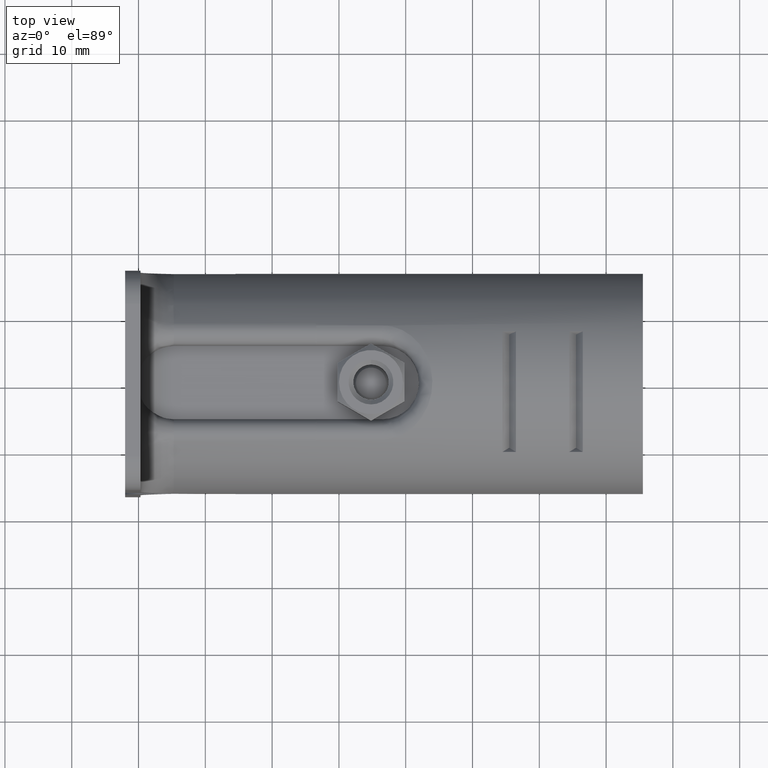
[diagram: clean part render]
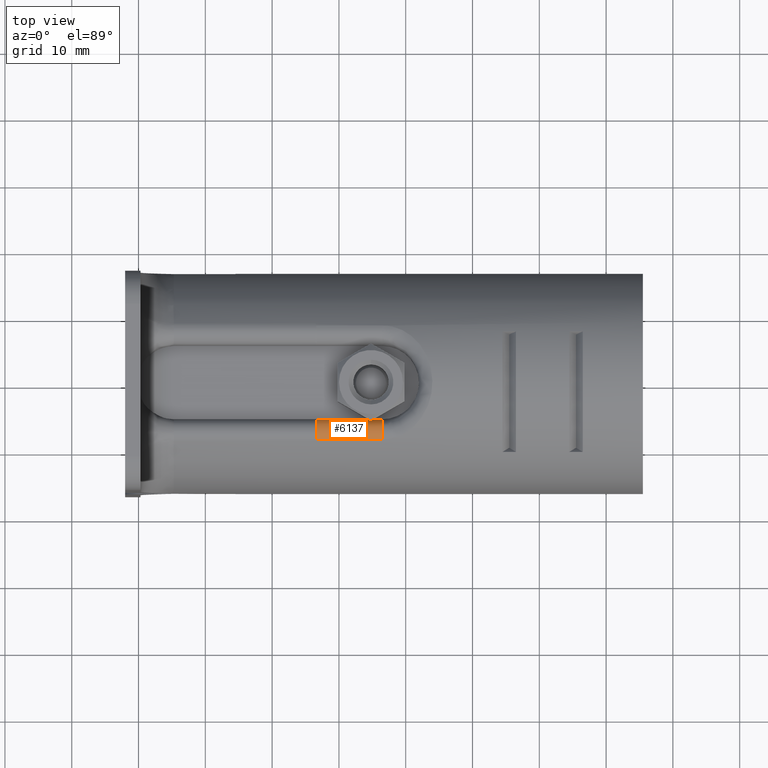
[diagram: same view with one face highlighted and labeled with its STEP entity id]
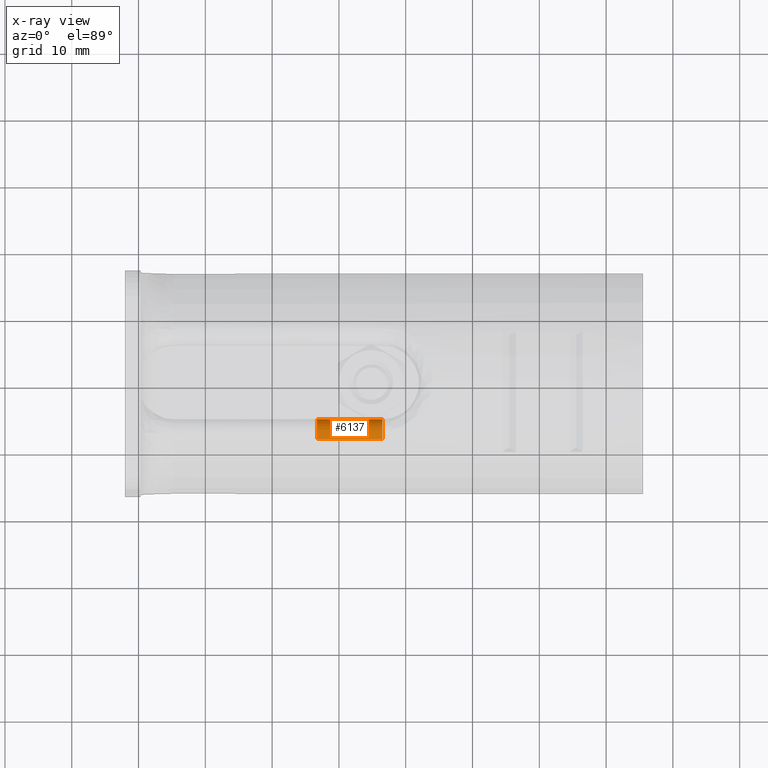
[diagram: x-ray of the same camera — body ghosted, the highlighted face saturated]
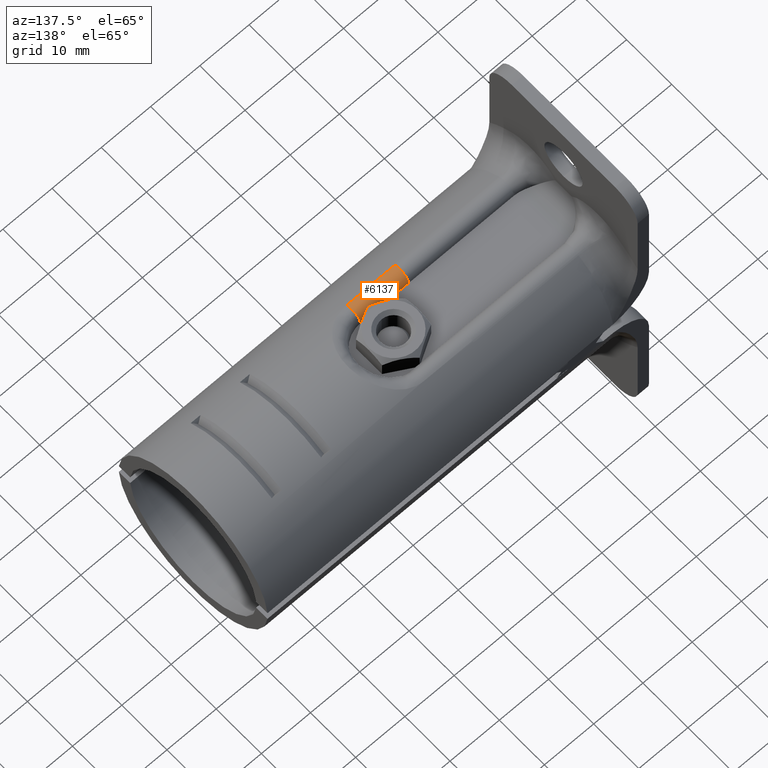
[diagram: same view with one face highlighted and labeled with its STEP entity id]
A machine part, top view. The second image highlights one B-rep face of the part: STEP entity #6137.
The next image is the same camera in x-ray: the body ghosted, the highlighted face saturated — about 0% of this face is hidden behind the body in this view.
A second angle (auxiliary view) of the same face is appended — the face is thin or edge-on in the first view.
In plain terms, the highlighted face is a freeform B-spline surface patch.
Its self-contained STEP definition (entity closure, byte-faithful):
#489 = VERTEX_POINT ( 'NONE', #19041 ) ;
#1080 = CARTESIAN_POINT ( 'NONE',  ( 16.69046530585615784, -5.858668590180206692, 13.56917137314968791 ) ) ;
#1153 = VERTEX_POINT ( 'NONE', #13355 ) ;
#1292 = CARTESIAN_POINT ( 'NONE',  ( 16.69041827631248154, -6.238309429125689753, 13.97479582052905656 ) ) ;
#1586 = CARTESIAN_POINT ( 'NONE',  ( 23.23093102237001872, -8.654965075291991994, 14.04227307775001776 ) ) ;
#1744 = CARTESIAN_POINT ( 'NONE',  ( 23.23017313369238224, -5.499999999537265261, 12.49999998963397196 ) ) ;
#1901 = CARTESIAN_POINT ( 'NONE',  ( 16.49421685236998414, -8.654965075291991994, 14.04227307775001776 ) ) ;
#2398 = CIRCLE ( 'NONE', #6233, 2.000000000000000444 ) ;
#2468 = CARTESIAN_POINT ( 'NONE',  ( 16.69051064318999877, -8.532224505211997823, 14.12267162089000117 ) ) ;
#2716 = CARTESIAN_POINT ( 'NONE',  ( 16.69037683935441407, -7.271406484646953494, 14.40622499079943708 ) ) ;
#3143 = CARTESIAN_POINT ( 'NONE',  ( 26.63158934706000380, -5.444363472037998974, 14.24398270833999725 ) ) ;
#3212 = ORIENTED_EDGE ( 'NONE', *, *, #12656, .F. ) ;
#3247 = CARTESIAN_POINT ( 'NONE',  ( 16.49421685236999124, -7.112071413403000086, 15.13645906077998760 ) ) ;
#3908 = CARTESIAN_POINT ( 'NONE',  ( 19.96034042863333369, -8.532237117428309148, 14.12270971775805961 ) ) ;
#4138 = CARTESIAN_POINT ( 'NONE',  ( 16.69040860540292925, -8.410235381146142331, 14.19622060583723844 ) ) ;
#4255 =( BOUNDED_CURVE ( )  B_SPLINE_CURVE ( 3, ( #11882, #1744, #18566, #13291 ),
 .UNSPECIFIED., .F., .T. ) 
 B_SPLINE_CURVE_WITH_KNOTS ( ( 4, 4 ),
 ( 0.000000000000000000, 1.000000000000000000 ),
 .UNSPECIFIED. ) 
 CURVE ( )  GEOMETRIC_REPRESENTATION_ITEM ( )  RATIONAL_B_SPLINE_CURVE ( ( 1.323926781012948917, 1.323926781012948917, 1.323926781012948917, 1.323926781012948917 ) ) 
 REPRESENTATION_ITEM ( '' )  );
#4256 = CARTESIAN_POINT ( 'NONE',  ( 16.69038790349048540, -7.969180617657100285, 14.36083794830917348 ) ) ;
#4330 = VERTEX_POINT ( 'NONE', #10236 ) ;
#4371 = DIRECTION ( 'NONE',  ( 0.000000000000000000, -0.5171043559628176745, 0.8559223592384298529 ) ) ;
#4811 = EDGE_CURVE ( 'NONE', #489, #1153, #8928, .T. ) ;
#4872 = CARTESIAN_POINT ( 'NONE',  ( 26.63158934706000380, -7.112071413403000086, 15.13645906077998760 ) ) ;
#4980 = CARTESIAN_POINT ( 'NONE',  ( 26.63158934705999670, -5.498842904423997702, 12.35326966590998943 ) ) ;
#5881 = EDGE_CURVE ( 'NONE', #4330, #16488, #4255, .T. ) ;
#5884 = ORIENTED_EDGE ( 'NONE', *, *, #16424, .T. ) ;
#6137 = ADVANCED_FACE ( 'NONE', ( #13026 ), #21578, .T. ) ;
#6233 = AXIS2_PLACEMENT_3D ( 'NONE', #14474, #12841, #4371 ) ;
#6697 = CARTESIAN_POINT ( 'NONE',  ( 23.23093102237001872, -5.498842904423997702, 12.35326966590998943 ) ) ;
#7686 = CARTESIAN_POINT ( 'NONE',  ( 16.69040603875293982, -6.392976386814495093, 14.08804096133615325 ) ) ;
#7881 = EDGE_LOOP ( 'NONE', ( #5884, #15688, #3212, #16974 ) ) ;
#8220 = CARTESIAN_POINT ( 'NONE',  ( 26.69619182641998734, -8.654965075291991994, 14.04227307775001776 ) ) ;
#8437 = CARTESIAN_POINT ( 'NONE',  ( 26.63158934705999670, -8.654965075291991994, 14.04227307775001776 ) ) ;
#8546 = CARTESIAN_POINT ( 'NONE',  ( 16.49421685236999124, -5.444363472037998974, 14.24398270833999725 ) ) ;
#8928 = B_SPLINE_CURVE_WITH_KNOTS ( 'NONE', 3,
 ( #10861, #14222, #3908, #2468 ),
 .UNSPECIFIED., .F., .F.,
 ( 4, 4 ),
 ( 0.000000000000000000, 1.000000000000000000 ),
 .UNSPECIFIED. ) ;
#9347 = CARTESIAN_POINT ( 'NONE',  ( 16.69037725345681622, -7.454315710987887478, 14.41764261003845071 ) ) ;
#9667 = CARTESIAN_POINT ( 'NONE',  ( 16.69038220151154661, -6.908127910685938566, 14.33041294059976956 ) ) ;
#9773 = CARTESIAN_POINT ( 'NONE',  ( 16.69038279954215298, -7.803247753950117271, 14.39484009624945671 ) ) ;
#10236 = CARTESIAN_POINT ( 'NONE',  ( 26.49999999981000087, -5.500000276362000839, 12.49999998767000164 ) ) ;
#10756 = CARTESIAN_POINT ( 'NONE',  ( 16.69040081517616869, -8.272642750328433436, 14.26144341400540760 ) ) ;
#10809 = B_SPLINE_CURVE_WITH_KNOTS ( 'NONE', 3,
 ( #19072, #4138, #10756, #4256, #9773, #9347, #2716, #9667, #20961, #7686, #1292, #11102, #1080, #16463, #21298, #12724, #14467, #10995 ),
 .UNSPECIFIED., .F., .F.,
 ( 4, 2, 2, 2, 2, 2, 2, 2, 4 ),
 ( 0.000000000000000000, 0.1249999999999995282, 0.2499999999999990563, 0.3749999999999991673, 0.4999999999999993339, 0.6249999999999994449, 0.7499999999999995559, 0.8749999999999997780, 1.000000000000000000 ),
 .UNSPECIFIED. ) ;
#10861 = CARTESIAN_POINT ( 'NONE',  ( 26.49999999951999996, -8.532221500501998790, 14.12271831023000068 ) ) ;
#10995 = CARTESIAN_POINT ( 'NONE',  ( 16.69051940147000224, -5.500104742473999941, 12.49999530696000072 ) ) ;
#11102 = CARTESIAN_POINT ( 'NONE',  ( 16.69044792436782387, -5.971117516126040137, 13.71522461221939970 ) ) ;
#11821 = CARTESIAN_POINT ( 'NONE',  ( 23.23093102237000807, -5.444363472037998974, 14.24398270833999725 ) ) ;
#11882 = CARTESIAN_POINT ( 'NONE',  ( 26.49999999981000087, -5.500000276362000839, 12.49999998767000164 ) ) ;
#12656 = EDGE_CURVE ( 'NONE', #1153, #16488, #10809, .T. ) ;
#12724 = CARTESIAN_POINT ( 'NONE',  ( 16.69056463327700968, -5.529267885253151604, 12.79629013352441369 ) ) ;
#12841 = DIRECTION ( 'NONE',  ( -1.000000000000000000, 0.000000000000000000, 0.000000000000000000 ) ) ;
#13026 = FACE_OUTER_BOUND ( 'NONE', #7881, .T. ) ;
#13242 = CARTESIAN_POINT ( 'NONE',  ( 26.69619182642001931, -7.112071413403000086, 15.13645906077998760 ) ) ;
#13291 = CARTESIAN_POINT ( 'NONE',  ( 16.69051940147000224, -5.500104742473999941, 12.49999530696000072 ) ) ;
#13355 = CARTESIAN_POINT ( 'NONE',  ( 16.69051064318999877, -8.532224505211997823, 14.12267162089000117 ) ) ;
#14222 = CARTESIAN_POINT ( 'NONE',  ( 23.23017021407667215, -8.532229495408754971, 14.12271432259946913 ) ) ;
#14467 = CARTESIAN_POINT ( 'NONE',  ( 16.69058563760571445, -5.506768734144134037, 12.64396566009584966 ) ) ;
#14474 = CARTESIAN_POINT ( 'NONE',  ( 26.49999999946000173, -7.498013161460999498, 12.41087420895999927 ) ) ;
#14782 = CARTESIAN_POINT ( 'NONE',  ( 26.69619182642001931, -5.444363472037998974, 14.24398270833999725 ) ) ;
#14890 = CARTESIAN_POINT ( 'NONE',  ( 19.83027269768998480, -8.654965075291991994, 14.04227307775001776 ) ) ;
#15118 = CARTESIAN_POINT ( 'NONE',  ( 16.49421685236998414, -5.498842904423997702, 12.35326966590998943 ) ) ;
#15688 = ORIENTED_EDGE ( 'NONE', *, *, #5881, .T. ) ;
#16424 = EDGE_CURVE ( 'NONE', #489, #4330, #2398, .T. ) ;
#16463 = CARTESIAN_POINT ( 'NONE',  ( 16.69050301586818463, -5.681424531442673675, 13.26482945273826886 ) ) ;
#16488 = VERTEX_POINT ( 'NONE', #19851 ) ;
#16549 = CARTESIAN_POINT ( 'NONE',  ( 26.69619182641998734, -5.498842904423997702, 12.35326966590998943 ) ) ;
#16765 = CARTESIAN_POINT ( 'NONE',  ( 19.83027269768998480, -5.498842904423997702, 12.35326966590998943 ) ) ;
#16974 = ORIENTED_EDGE ( 'NONE', *, *, #4811, .F. ) ;
#18514 = CARTESIAN_POINT ( 'NONE',  ( 19.83027269768998124, -5.444363472037998974, 14.24398270833999725 ) ) ;
#18566 = CARTESIAN_POINT ( 'NONE',  ( 19.96034626758397579, -5.499999999537265261, 12.49999998963397196 ) ) ;
#19041 = CARTESIAN_POINT ( 'NONE',  ( 26.49999999951999996, -8.532221500501998790, 14.12271831023000068 ) ) ;
#19072 = CARTESIAN_POINT ( 'NONE',  ( 16.69051064318999877, -8.532224505211997823, 14.12267162089000117 ) ) ;
#19727 = CARTESIAN_POINT ( 'NONE',  ( 19.83027269768998124, -7.112071413403000086, 15.13645906077998760 ) ) ;
#19851 = CARTESIAN_POINT ( 'NONE',  ( 16.69051940147000224, -5.500104742473999941, 12.49999530696000072 ) ) ;
#19947 = CARTESIAN_POINT ( 'NONE',  ( 23.23093102237000807, -7.112071413403000086, 15.13645906077998760 ) ) ;
#20961 = CARTESIAN_POINT ( 'NONE',  ( 16.69038799800122064, -6.728019244705737201, 14.26591594285105380 ) ) ;
#21298 = CARTESIAN_POINT ( 'NONE',  ( 16.69052331656587285, -5.616506223328732617, 13.10674765902462013 ) ) ;
#21578 =( BOUNDED_SURFACE ( )  B_SPLINE_SURFACE ( 3, 3, ( 
 ( #8220, #8437, #1586, #14890, #1901 ),
 ( #13242, #4872, #19947, #19727, #3247 ),
 ( #14782, #3143, #11821, #18514, #8546 ),
 ( #16549, #4980, #6697, #16765, #15118 ) ),
 .UNSPECIFIED., .F., .F., .T. ) 
 B_SPLINE_SURFACE_WITH_KNOTS ( ( 4, 4 ),
 ( 4, 1, 4 ),
 ( 0.000000000000000000, 1.000000000000000000 ),
 ( -0.01761113548822000260, 0.000000000000000000, 0.9094346233225000242 ),
 .UNSPECIFIED. ) 
 GEOMETRIC_REPRESENTATION_ITEM ( )  RATIONAL_B_SPLINE_SURFACE ( (
 ( 1.382891107325999958, 1.382891107325999958, 1.382891107325999958, 1.382891107325999958, 1.382891107325999958),
 ( 0.8723696308912000097, 0.8723696308912000097, 0.8723696308912000097, 0.8723696308912000097, 0.8723696308912000097),
 ( 0.8723696308912000097, 0.8723696308912000097, 0.8723696308912000097, 0.8723696308912000097, 0.8723696308912000097),
 ( 1.382891107325999958, 1.382891107325999958, 1.382891107325999958, 1.382891107325999958, 1.382891107325999958) ) ) 
 REPRESENTATION_ITEM ( '' )  SURFACE ( )  );